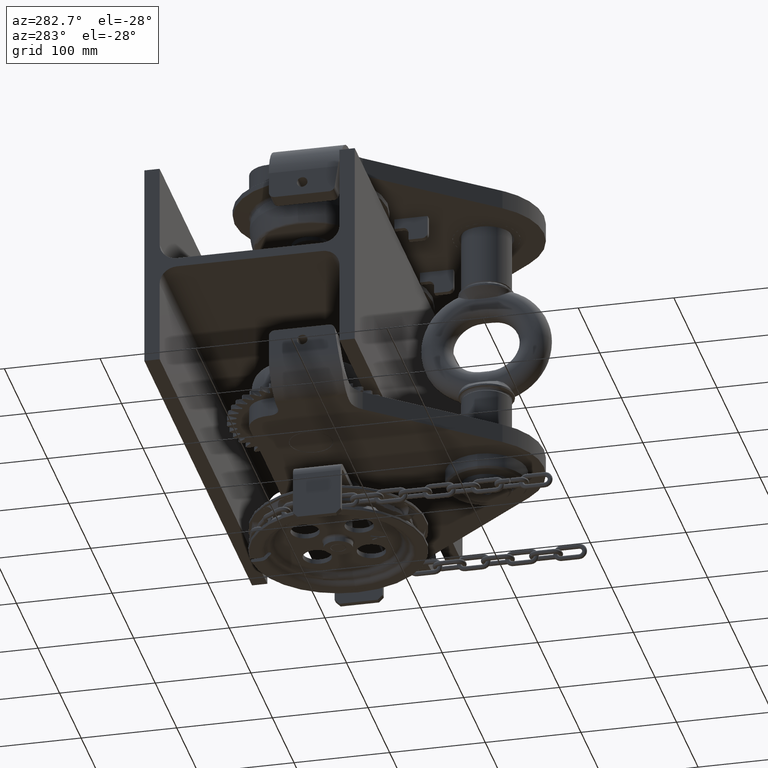
[diagram: clean part render]
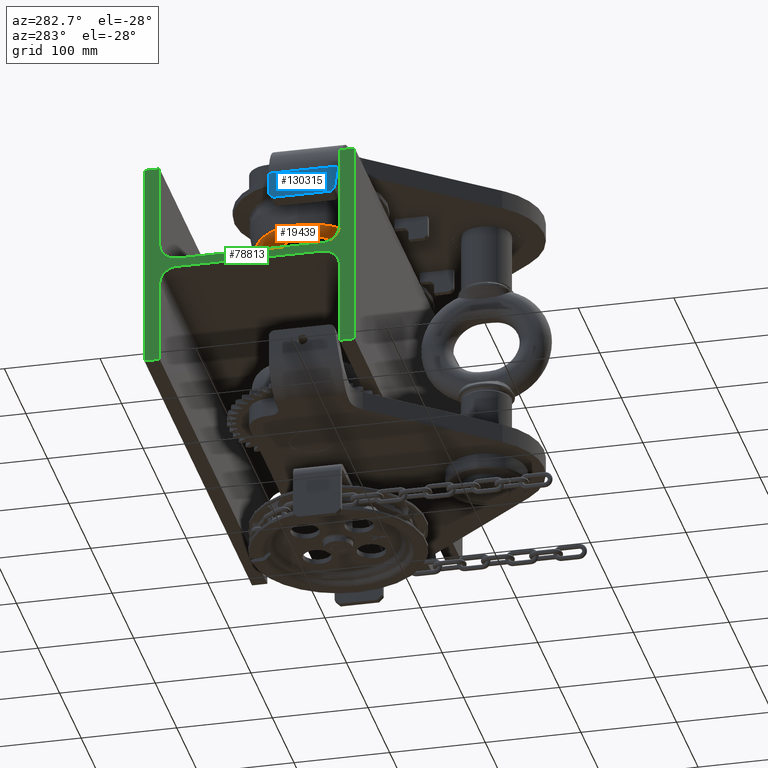
[diagram: same view with three faces highlighted in distinct colors, each labeled with its STEP entity id]
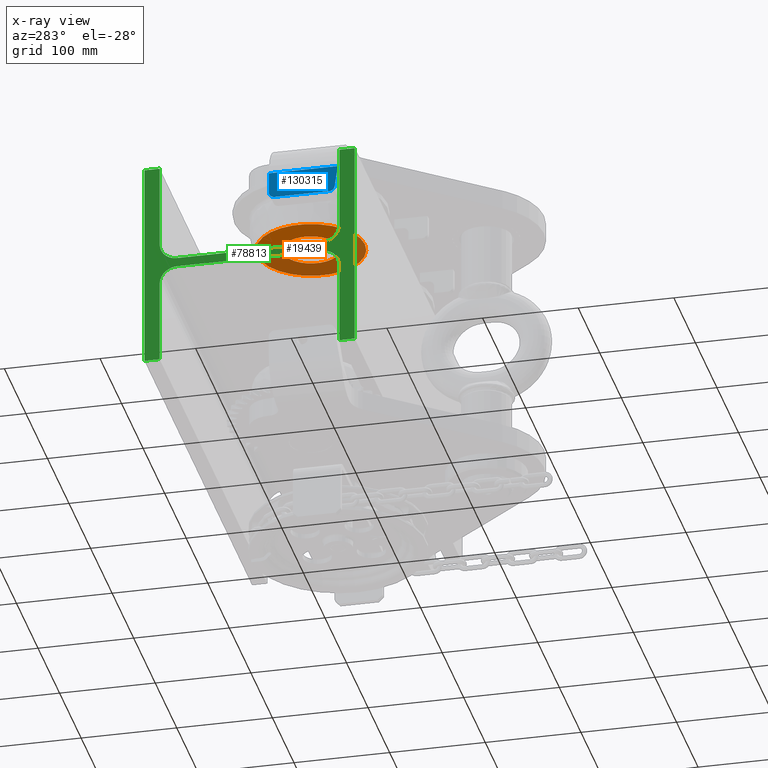
[diagram: x-ray of the same camera — body ghosted, the three highlighted faces saturated]
A machine part, auxiliary view with three faces highlighted in distinct colors.
The next image is the same camera in x-ray (body ghosted, the three faces saturated) — at least one of them is partly hidden behind the body in this view.
Their STEP definitions:

[orange] entity #19439 — the highlighted planar face has unit normal (0, -0, 1).
#1369 = AXIS2_PLACEMENT_3D ( 'NONE', #79712, #19463, #89887 ) ;
#4929 = EDGE_LOOP ( 'NONE', ( #107119, #112929 ) ) ;
#7710 = AXIS2_PLACEMENT_3D ( 'NONE', #65252, #35841, #36697 ) ;
#9279 = VERTEX_POINT ( 'NONE', #46216 ) ;
#12326 = CIRCLE ( 'NONE', #7710, 56.38483838763749400 ) ;
#13641 = DIRECTION ( 'NONE',  ( 4.704334850106594800E-016, 1.000000000000000000, 0.0000000000000000000 ) ) ;
#15165 = VERTEX_POINT ( 'NONE', #88862 ) ;
#19439 = ADVANCED_FACE ( 'NONE', ( #21214, #106113 ), #22588, .F. ) ;
#19463 = DIRECTION ( 'NONE',  ( 1.448770578083864200E-017, -2.739772443918363900E-018, 1.000000000000000000 ) ) ;
#21214 = FACE_BOUND ( 'NONE', #4929, .T. ) ;
#21297 = CIRCLE ( 'NONE', #1369, 29.50000000000000700 ) ;
#22588 = PLANE ( 'NONE',  #111922 ) ;
#22798 = VERTEX_POINT ( 'NONE', #127748 ) ;
#26589 = CARTESIAN_POINT ( 'NONE',  ( -104.5000000000026700, -1.999999999999904500, 76.99999999999970200 ) ) ;
#35831 = DIRECTION ( 'NONE',  ( 2.461262318853643100E-016, 1.000000000000000000, 0.0000000000000000000 ) ) ;
#35841 = DIRECTION ( 'NONE',  ( 1.448770578083864200E-017, -2.739772443918363900E-018, 1.000000000000000000 ) ) ;
#36697 = DIRECTION ( 'NONE',  ( 2.461262318853643100E-016, 1.000000000000000000, 0.0000000000000000000 ) ) ;
#44196 = CARTESIAN_POINT ( 'NONE',  ( -104.5000000000026700, -31.49999999999991100, 76.99999999999967300 ) ) ;
#46216 = CARTESIAN_POINT ( 'NONE',  ( -104.5000000000026600, 24.88483838763758300, 76.99999999999967300 ) ) ;
#62182 = CIRCLE ( 'NONE', #123197, 56.38483838763749400 ) ;
#63671 = CARTESIAN_POINT ( 'NONE',  ( -104.5000000000026700, -31.49999999999991100, 76.99999999999970200 ) ) ;
#64044 = EDGE_CURVE ( 'NONE', #9279, #15165, #62182, .T. ) ;
#64190 = VERTEX_POINT ( 'NONE', #26589 ) ;
#65252 = CARTESIAN_POINT ( 'NONE',  ( -104.5000000000026700, -31.49999999999991100, 76.99999999999967300 ) ) ;
#79712 = CARTESIAN_POINT ( 'NONE',  ( -104.5000000000026700, -31.49999999999991100, 76.99999999999970200 ) ) ;
#81247 = EDGE_CURVE ( 'NONE', #64190, #22798, #21297, .T. ) ;
#81626 = EDGE_LOOP ( 'NONE', ( #108723, #113766 ) ) ;
#81961 = DIRECTION ( 'NONE',  ( 1.448770578083863900E-017, -4.784122660498730500E-019, 1.000000000000000000 ) ) ;
#88862 = CARTESIAN_POINT ( 'NONE',  ( -104.5000000000027000, -87.88483838763740200, 76.99999999999967300 ) ) ;
#89339 = CIRCLE ( 'NONE', #96532, 29.50000000000000700 ) ;
#89887 = DIRECTION ( 'NONE',  ( 4.704334850106594800E-016, 1.000000000000000000, 0.0000000000000000000 ) ) ;
#96099 = DIRECTION ( 'NONE',  ( 1.448770578083864200E-017, -2.739772443918363900E-018, 1.000000000000000000 ) ) ;
#96532 = AXIS2_PLACEMENT_3D ( 'NONE', #63671, #113531, #13641 ) ;
#106113 = FACE_OUTER_BOUND ( 'NONE', #81626, .T. ) ;
#107119 = ORIENTED_EDGE ( 'NONE', *, *, #124368, .T. ) ;
#108723 = ORIENTED_EDGE ( 'NONE', *, *, #64044, .F. ) ;
#111922 = AXIS2_PLACEMENT_3D ( 'NONE', #113230, #81961, #112791 ) ;
#112791 = DIRECTION ( 'NONE',  ( 2.775557561562893300E-016, 1.000000000000000000, 4.784122660498690000E-019 ) ) ;
#112929 = ORIENTED_EDGE ( 'NONE', *, *, #81247, .T. ) ;
#113230 = CARTESIAN_POINT ( 'NONE',  ( -160.8848383876403400, -31.49999999999993600, 76.99999999999967300 ) ) ;
#113531 = DIRECTION ( 'NONE',  ( 1.448770578083864200E-017, -2.739772443918363900E-018, 1.000000000000000000 ) ) ;
#113766 = ORIENTED_EDGE ( 'NONE', *, *, #127037, .F. ) ;
#123197 = AXIS2_PLACEMENT_3D ( 'NONE', #44196, #96099, #35831 ) ;
#124368 = EDGE_CURVE ( 'NONE', #22798, #64190, #89339, .T. ) ;
#127037 = EDGE_CURVE ( 'NONE', #15165, #9279, #12326, .T. ) ;
#127748 = CARTESIAN_POINT ( 'NONE',  ( -104.5000000000026900, -60.99999999999991500, 76.99999999999970200 ) ) ;

[blue] entity #130315 — the highlighted planar face has unit normal (-1, -0, 0).
#786 = ORIENTED_EDGE ( 'NONE', *, *, #38282, .T. ) ;
#1256 = CARTESIAN_POINT ( 'NONE',  ( -225.0000000000015600, -251.4999999999995500, 77.00000000000164800 ) ) ;
#3119 = CARTESIAN_POINT ( 'NONE',  ( -225.0000000000016200, -20.49999999999990100, 83.00000000000166300 ) ) ;
#4646 = EDGE_LOOP ( 'NONE', ( #5692, #121038 ) ) ;
#5170 = AXIS2_PLACEMENT_3D ( 'NONE', #24581, #14518, #75564 ) ;
#5692 = ORIENTED_EDGE ( 'NONE', *, *, #107768, .T. ) ;
#5723 = FACE_OUTER_BOUND ( 'NONE', #89746, .T. ) ;
#6695 = DIRECTION ( 'NONE',  ( 0.0000000000000000000, -1.000000000000000000, 0.0000000000000000000 ) ) ;
#7714 = EDGE_CURVE ( 'NONE', #27940, #105470, #24462, .T. ) ;
#11001 = EDGE_CURVE ( 'NONE', #84545, #104438, #76986, .T. ) ;
#12948 = VERTEX_POINT ( 'NONE', #95020 ) ;
#13016 = CARTESIAN_POINT ( 'NONE',  ( -225.0000000000016200, -49.49999999999983700, 91.00000000000166300 ) ) ;
#13638 = DIRECTION ( 'NONE',  ( -1.000000000000000000, 1.665334536937732800E-016, 7.198470905858312400E-017 ) ) ;
#14518 = DIRECTION ( 'NONE',  ( 1.000000000000000000, -1.665334536937732800E-016, -7.198470905858312400E-017 ) ) ;
#19918 = ORIENTED_EDGE ( 'NONE', *, *, #7714, .F. ) ;
#22879 = CARTESIAN_POINT ( 'NONE',  ( -225.0000000000015600, -251.4999999999995500, 105.0000000000016600 ) ) ;
#23644 = DIRECTION ( 'NONE',  ( -1.387778780781459200E-017, 1.000000000000000000, 6.193977041085462900E-017 ) ) ;
#24462 = LINE ( 'NONE', #62311, #81159 ) ;
#24581 = CARTESIAN_POINT ( 'NONE',  ( -225.0000000000016200, -49.49999999999983700, 91.00000000000166300 ) ) ;
#27940 = VERTEX_POINT ( 'NONE', #64139 ) ;
#30128 = VERTEX_POINT ( 'NONE', #87385 ) ;
#30800 = FACE_BOUND ( 'NONE', #4646, .T. ) ;
#32408 = AXIS2_PLACEMENT_3D ( 'NONE', #13016, #92631, #42450 ) ;
#32957 = DIRECTION ( 'NONE',  ( -1.000000000000000000, -1.387778780781459500E-017, 7.198470905858312400E-017 ) ) ;
#33096 = CIRCLE ( 'NONE', #73317, 6.000000000000005300 ) ;
#35736 = LINE ( 'NONE', #82165, #123909 ) ;
#37062 = CARTESIAN_POINT ( 'NONE',  ( -225.0000000000016200, -77.53831950738792500, 77.00000000000166300 ) ) ;
#38282 = EDGE_CURVE ( 'NONE', #84545, #30128, #33096, .T. ) ;
#38686 = EDGE_CURVE ( 'NONE', #27940, #104438, #113192, .T. ) ;
#42450 = DIRECTION ( 'NONE',  ( 0.0000000000000000000, 1.000000000000000000, 0.0000000000000000000 ) ) ;
#43037 = DIRECTION ( 'NONE',  ( 1.387778780781459200E-017, -1.000000000000000000, -6.193977041085462900E-017 ) ) ;
#43362 = VERTEX_POINT ( 'NONE', #67014 ) ;
#49940 = EDGE_CURVE ( 'NONE', #12948, #54660, #96341, .T. ) ;
#52725 = CARTESIAN_POINT ( 'NONE',  ( -225.0000000000015600, -251.4999999999995500, 105.0000000000016600 ) ) ;
#54660 = VERTEX_POINT ( 'NONE', #96059 ) ;
#57633 = ORIENTED_EDGE ( 'NONE', *, *, #38686, .T. ) ;
#62311 = CARTESIAN_POINT ( 'NONE',  ( -225.0000000000016200, -14.49999999999986700, 77.00000000000166300 ) ) ;
#64139 = CARTESIAN_POINT ( 'NONE',  ( -225.0000000000016200, -14.49999999999986700, 83.00000000000166300 ) ) ;
#67014 = CARTESIAN_POINT ( 'NONE',  ( -225.0000000000016200, -86.68918330595217000, 105.0000000000016800 ) ) ;
#73317 = AXIS2_PLACEMENT_3D ( 'NONE', #95986, #76605, #6695 ) ;
#75051 = AXIS2_PLACEMENT_3D ( 'NONE', #3119, #13638, #93245 ) ;
#75564 = DIRECTION ( 'NONE',  ( 0.0000000000000000000, 1.000000000000000000, 0.0000000000000000000 ) ) ;
#76605 = DIRECTION ( 'NONE',  ( -1.000000000000000000, 1.665334536937732800E-016, 7.198470905858312400E-017 ) ) ;
#76633 = CARTESIAN_POINT ( 'NONE',  ( -225.0000000000016200, -20.49999999999991500, 77.00000000000166300 ) ) ;
#76986 = LINE ( 'NONE', #1256, #100643 ) ;
#81159 = VECTOR ( 'NONE', #82184, 1000.000000000000000 ) ;
#82165 = CARTESIAN_POINT ( 'NONE',  ( -225.0000000000016200, -89.49999999999977300, 125.0000000000016600 ) ) ;
#82184 = DIRECTION ( 'NONE',  ( 7.198470905858334600E-017, -6.193977041085496200E-017, 1.000000000000000000 ) ) ;
#83132 = PLANE ( 'NONE',  #125307 ) ;
#84545 = VERTEX_POINT ( 'NONE', #37062 ) ;
#87385 = CARTESIAN_POINT ( 'NONE',  ( -225.0000000000016200, -83.47992791983733700, 82.16496139424133100 ) ) ;
#89746 = EDGE_LOOP ( 'NONE', ( #120516, #786, #127262, #94546, #19918, #57633 ) ) ;
#92631 = DIRECTION ( 'NONE',  ( 1.000000000000000000, -1.665334536937732800E-016, -7.198470905858312400E-017 ) ) ;
#93245 = DIRECTION ( 'NONE',  ( 0.0000000000000000000, -1.000000000000000000, 0.0000000000000000000 ) ) ;
#93873 = EDGE_CURVE ( 'NONE', #30128, #43362, #35736, .T. ) ;
#94546 = ORIENTED_EDGE ( 'NONE', *, *, #130207, .T. ) ;
#95020 = CARTESIAN_POINT ( 'NONE',  ( -225.0000000000016200, -54.99999999999984400, 91.00000000000166300 ) ) ;
#95888 = LINE ( 'NONE', #52725, #96968 ) ;
#95986 = CARTESIAN_POINT ( 'NONE',  ( -225.0000000000016200, -77.53831950738791100, 83.00000000000166300 ) ) ;
#96059 = CARTESIAN_POINT ( 'NONE',  ( -225.0000000000016200, -43.99999999999982900, 91.00000000000166300 ) ) ;
#96341 = CIRCLE ( 'NONE', #5170, 5.500000000000005300 ) ;
#96968 = VECTOR ( 'NONE', #123207, 1000.000000000000000 ) ;
#100643 = VECTOR ( 'NONE', #23644, 1000.000000000000000 ) ;
#100903 = CIRCLE ( 'NONE', #32408, 5.500000000000005300 ) ;
#104438 = VERTEX_POINT ( 'NONE', #76633 ) ;
#105470 = VERTEX_POINT ( 'NONE', #109685 ) ;
#107768 = EDGE_CURVE ( 'NONE', #54660, #12948, #100903, .T. ) ;
#109685 = CARTESIAN_POINT ( 'NONE',  ( -225.0000000000016200, -14.49999999999986700, 105.0000000000016800 ) ) ;
#113192 = CIRCLE ( 'NONE', #75051, 5.999999999999998200 ) ;
#120516 = ORIENTED_EDGE ( 'NONE', *, *, #11001, .F. ) ;
#121038 = ORIENTED_EDGE ( 'NONE', *, *, #49940, .T. ) ;
#122690 = DIRECTION ( 'NONE',  ( 7.321557358204642800E-017, -0.1391731009600587500, 0.9902680687415712500 ) ) ;
#123207 = DIRECTION ( 'NONE',  ( -1.387778780781459200E-017, 1.000000000000000000, 6.193977041085462900E-017 ) ) ;
#123909 = VECTOR ( 'NONE', #122690, 1000.000000000000100 ) ;
#125307 = AXIS2_PLACEMENT_3D ( 'NONE', #22879, #32957, #43037 ) ;
#127262 = ORIENTED_EDGE ( 'NONE', *, *, #93873, .T. ) ;
#130207 = EDGE_CURVE ( 'NONE', #43362, #105470, #95888, .T. ) ;
#130315 = ADVANCED_FACE ( 'NONE', ( #30800, #5723 ), #83132, .T. ) ;

[green] entity #78813 — the highlighted planar face has unit normal (-1, -0, 0).
#840 = ORIENTED_EDGE ( 'NONE', *, *, #12330, .F. ) ;
#2723 = CARTESIAN_POINT ( 'NONE',  ( -250.0000000000006500, 94.00000000000031300, -109.9999999999998900 ) ) ;
#3785 = EDGE_CURVE ( 'NONE', #90476, #58443, #98786, .T. ) ;
#3971 = CARTESIAN_POINT ( 'NONE',  ( -250.0000000000006500, 94.00000000000025600, 22.75000000000008200 ) ) ;
#6027 = DIRECTION ( 'NONE',  ( -7.690921138283205700E-049, 1.000000000000000000, -8.244299725649902800E-016 ) ) ;
#7266 = EDGE_CURVE ( 'NONE', #102897, #121765, #68733, .T. ) ;
#7576 = EDGE_CURVE ( 'NONE', #96896, #90476, #82792, .T. ) ;
#10397 = DIRECTION ( 'NONE',  ( 9.629649721936186100E-034, -1.622250703616511100E-016, 1.000000000000000000 ) ) ;
#10471 = EDGE_CURVE ( 'NONE', #18727, #11348, #19026, .T. ) ;
#10580 = LINE ( 'NONE', #3971, #63961 ) ;
#11348 = VERTEX_POINT ( 'NONE', #122087 ) ;
#12330 = EDGE_CURVE ( 'NONE', #121765, #23322, #68240, .T. ) ;
#12665 = VERTEX_POINT ( 'NONE', #107875 ) ;
#13888 = DIRECTION ( 'NONE',  ( 6.614685807549049200E-050, 1.000000000000000000, 4.293176542341293600E-017 ) ) ;
#14862 = VECTOR ( 'NONE', #10397, 1000.000000000000000 ) ;
#16851 = DIRECTION ( 'NONE',  ( 0.0000000000000000000, 0.0000000000000000000, -1.000000000000000000 ) ) ;
#18158 = ORIENTED_EDGE ( 'NONE', *, *, #65610, .T. ) ;
#18727 = VERTEX_POINT ( 'NONE', #58052 ) ;
#19026 = LINE ( 'NONE', #99877, #127592 ) ;
#20557 = CARTESIAN_POINT ( 'NONE',  ( -250.0000000000006500, 76.00000000000009900, 22.75000000000007500 ) ) ;
#21071 = CARTESIAN_POINT ( 'NONE',  ( -250.0000000000006500, 110.0000000000003100, 110.0000000000001000 ) ) ;
#23322 = VERTEX_POINT ( 'NONE', #37357 ) ;
#24954 = EDGE_CURVE ( 'NONE', #34374, #45451, #74839, .T. ) ;
#25351 = DIRECTION ( 'NONE',  ( 9.013858299792980600E-049, 1.000000000000000000, 9.102935034118123800E-016 ) ) ;
#25895 = DIRECTION ( 'NONE',  ( 9.629649721936186100E-034, -4.293176542341792800E-017, 1.000000000000000000 ) ) ;
#26402 = CARTESIAN_POINT ( 'NONE',  ( -250.0000000000006500, 76.00000000000009900, 4.750000000000046200 ) ) ;
#26468 = CARTESIAN_POINT ( 'NONE',  ( -250.0000000000006500, -93.99999999999985800, -110.0000000000000100 ) ) ;
#26476 = CARTESIAN_POINT ( 'NONE',  ( -250.0000000000006500, -75.99999999999963100, 22.75000000000006400 ) ) ;
#26599 = DIRECTION ( 'NONE',  ( -1.000000000000000000, -1.653671451887099000E-050, -1.925929944387234500E-033 ) ) ;
#27020 = CARTESIAN_POINT ( 'NONE',  ( -250.0000000000006500, -75.99999999999984400, -22.74999999999997200 ) ) ;
#29232 = ORIENTED_EDGE ( 'NONE', *, *, #7266, .F. ) ;
#29818 = VECTOR ( 'NONE', #25351, 1000.000000000000000 ) ;
#31565 = CIRCLE ( 'NONE', #62546, 18.00000000000001400 ) ;
#33354 = EDGE_CURVE ( 'NONE', #52200, #98062, #52113, .T. ) ;
#34374 = VERTEX_POINT ( 'NONE', #63168 ) ;
#35112 = CARTESIAN_POINT ( 'NONE',  ( -250.0000000000006500, 94.00000000000025600, -22.74999999999990800 ) ) ;
#37357 = CARTESIAN_POINT ( 'NONE',  ( -250.0000000000006500, -93.99999999999988600, -22.74999999999997500 ) ) ;
#37373 = VECTOR ( 'NONE', #25895, 1000.000000000000000 ) ;
#37576 = CARTESIAN_POINT ( 'NONE',  ( -250.0000000000006500, 94.00000000000025600, 22.75000000000008200 ) ) ;
#38317 = EDGE_CURVE ( 'NONE', #34374, #98062, #55036, .T. ) ;
#38936 = EDGE_CURVE ( 'NONE', #12665, #45575, #108201, .T. ) ;
#43330 = EDGE_CURVE ( 'NONE', #127339, #18727, #127430, .T. ) ;
#44903 = LINE ( 'NONE', #110247, #85887 ) ;
#45027 = CARTESIAN_POINT ( 'NONE',  ( -250.0000000000006500, 94.00000000000022700, 110.0000000000001000 ) ) ;
#45451 = VERTEX_POINT ( 'NONE', #57110 ) ;
#45575 = VERTEX_POINT ( 'NONE', #21071 ) ;
#45965 = CARTESIAN_POINT ( 'NONE',  ( -250.0000000000006500, -109.9999999999998700, -110.0000000000000000 ) ) ;
#46092 = EDGE_CURVE ( 'NONE', #45451, #12665, #97330, .T. ) ;
#46220 = DIRECTION ( 'NONE',  ( 1.000000000000000000, 1.653671451887099000E-050, 1.925929944387234500E-033 ) ) ;
#47881 = DIRECTION ( 'NONE',  ( 6.614685807549049200E-050, 1.000000000000000000, 4.293176542341293600E-017 ) ) ;
#48298 = DIRECTION ( 'NONE',  ( 6.614685807549049200E-050, 1.000000000000000000, 4.293176542341293600E-017 ) ) ;
#48784 = DIRECTION ( 'NONE',  ( -9.629649721936186100E-034, 2.667384474064550200E-015, -1.000000000000000000 ) ) ;
#49901 = DIRECTION ( 'NONE',  ( -9.629649721936186100E-034, 4.554710308673319500E-016, -1.000000000000000000 ) ) ;
#50406 = CARTESIAN_POINT ( 'NONE',  ( -250.0000000000006500, -75.99999999999984400, -4.749999999999960000 ) ) ;
#52113 = LINE ( 'NONE', #98105, #59911 ) ;
#52200 = VERTEX_POINT ( 'NONE', #50406 ) ;
#52638 = ORIENTED_EDGE ( 'NONE', *, *, #24954, .F. ) ;
#55036 = CIRCLE ( 'NONE', #86879, 17.99999999999997500 ) ;
#57110 = CARTESIAN_POINT ( 'NONE',  ( -250.0000000000006500, 94.00000000000031300, -109.9999999999998900 ) ) ;
#57901 = CARTESIAN_POINT ( 'NONE',  ( -250.0000000000006500, 110.0000000000003100, -109.9999999999999100 ) ) ;
#58052 = CARTESIAN_POINT ( 'NONE',  ( -250.0000000000006500, -93.99999999999991500, 110.0000000000000100 ) ) ;
#58062 = AXIS2_PLACEMENT_3D ( 'NONE', #88339, #68420, #98409 ) ;
#58191 = ORIENTED_EDGE ( 'NONE', *, *, #113335, .F. ) ;
#58443 = VERTEX_POINT ( 'NONE', #37576 ) ;
#58480 = ORIENTED_EDGE ( 'NONE', *, *, #38936, .F. ) ;
#59228 = EDGE_LOOP ( 'NONE', ( #840, #29232, #116743, #98976, #77802, #18158, #108771, #69411, #91639, #112800, #58480, #70016, #52638, #90072, #102003, #58191 ) ) ;
#59911 = VECTOR ( 'NONE', #47881, 1000.000000000000000 ) ;
#60511 = DIRECTION ( 'NONE',  ( 0.0000000000000000000, 0.0000000000000000000, -1.000000000000000000 ) ) ;
#62410 = VECTOR ( 'NONE', #6027, 1000.000000000000000 ) ;
#62546 = AXIS2_PLACEMENT_3D ( 'NONE', #26476, #46220, #85496 ) ;
#63168 = CARTESIAN_POINT ( 'NONE',  ( -250.0000000000006500, 94.00000000000025600, -22.74999999999990800 ) ) ;
#63961 = VECTOR ( 'NONE', #74701, 1000.000000000000000 ) ;
#64181 = VECTOR ( 'NONE', #81443, 1000.000000000000000 ) ;
#65610 = EDGE_CURVE ( 'NONE', #11348, #96896, #31565, .T. ) ;
#67701 = CARTESIAN_POINT ( 'NONE',  ( -250.0000000000006500, -75.99999999999963100, 4.750000000000058600 ) ) ;
#68240 = LINE ( 'NONE', #81594, #14862 ) ;
#68420 = DIRECTION ( 'NONE',  ( -1.000000000000000000, -1.405620734104246900E-049, 9.629649721936186100E-034 ) ) ;
#68486 = VECTOR ( 'NONE', #106781, 1000.000000000000000 ) ;
#68733 = LINE ( 'NONE', #45965, #62410 ) ;
#69411 = ORIENTED_EDGE ( 'NONE', *, *, #3785, .T. ) ;
#70016 = ORIENTED_EDGE ( 'NONE', *, *, #46092, .F. ) ;
#72662 = VECTOR ( 'NONE', #13888, 1000.000000000000000 ) ;
#74038 = EDGE_CURVE ( 'NONE', #82089, #45575, #79015, .T. ) ;
#74701 = DIRECTION ( 'NONE',  ( 9.629649721936186100E-034, -3.610472452587067100E-016, 1.000000000000000000 ) ) ;
#74715 = CARTESIAN_POINT ( 'NONE',  ( -250.0000000000006500, -109.9999999999998700, -110.0000000000000000 ) ) ;
#74839 = LINE ( 'NONE', #35112, #68486 ) ;
#76326 = CARTESIAN_POINT ( 'NONE',  ( -250.0000000000006500, -109.9999999999999700, 110.0000000000000000 ) ) ;
#77802 = ORIENTED_EDGE ( 'NONE', *, *, #10471, .T. ) ;
#78165 = PLANE ( 'NONE',  #58062 ) ;
#78813 = ADVANCED_FACE ( 'NONE', ( #80539 ), #78165, .T. ) ;
#79015 = LINE ( 'NONE', #45027, #72662 ) ;
#80539 = FACE_OUTER_BOUND ( 'NONE', #59228, .T. ) ;
#81443 = DIRECTION ( 'NONE',  ( -1.604331085732129100E-048, 1.000000000000000000, -1.691791710553390600E-015 ) ) ;
#81594 = CARTESIAN_POINT ( 'NONE',  ( -250.0000000000006500, -93.99999999999985800, -110.0000000000000100 ) ) ;
#82089 = VERTEX_POINT ( 'NONE', #126106 ) ;
#82792 = LINE ( 'NONE', #119242, #84443 ) ;
#84443 = VECTOR ( 'NONE', #48298, 1000.000000000000000 ) ;
#85496 = DIRECTION ( 'NONE',  ( 0.0000000000000000000, 0.0000000000000000000, -1.000000000000000000 ) ) ;
#85887 = VECTOR ( 'NONE', #49901, 1000.000000000000000 ) ;
#86366 = CARTESIAN_POINT ( 'NONE',  ( -250.0000000000006500, 76.00000000000015600, -22.74999999999992200 ) ) ;
#86879 = AXIS2_PLACEMENT_3D ( 'NONE', #86366, #117165, #16851 ) ;
#88339 = CARTESIAN_POINT ( 'NONE',  ( -250.0000000000006500, -75.99999999999984400, -22.74999999999997200 ) ) ;
#90072 = ORIENTED_EDGE ( 'NONE', *, *, #38317, .T. ) ;
#90476 = VERTEX_POINT ( 'NONE', #26402 ) ;
#91389 = DIRECTION ( 'NONE',  ( 1.000000000000000000, 1.653671451887099000E-050, 1.925929944387234500E-033 ) ) ;
#91639 = ORIENTED_EDGE ( 'NONE', *, *, #124346, .T. ) ;
#96896 = VERTEX_POINT ( 'NONE', #67701 ) ;
#96979 = DIRECTION ( 'NONE',  ( 0.0000000000000000000, 0.0000000000000000000, 1.000000000000000000 ) ) ;
#97224 = CARTESIAN_POINT ( 'NONE',  ( -250.0000000000006500, 76.00000000000015600, -4.749999999999941400 ) ) ;
#97330 = LINE ( 'NONE', #2723, #64181 ) ;
#98062 = VERTEX_POINT ( 'NONE', #97224 ) ;
#98105 = CARTESIAN_POINT ( 'NONE',  ( -250.0000000000006500, -75.99999999999984400, -4.749999999999960000 ) ) ;
#98409 = DIRECTION ( 'NONE',  ( 9.629649721936186100E-034, -4.293176542341792800E-017, 1.000000000000000000 ) ) ;
#98786 = CIRCLE ( 'NONE', #121534, 18.00000000000002500 ) ;
#98976 = ORIENTED_EDGE ( 'NONE', *, *, #43330, .T. ) ;
#99877 = CARTESIAN_POINT ( 'NONE',  ( -250.0000000000006500, -93.99999999999991500, 110.0000000000000100 ) ) ;
#102003 = ORIENTED_EDGE ( 'NONE', *, *, #33354, .F. ) ;
#102897 = VERTEX_POINT ( 'NONE', #74715 ) ;
#104013 = EDGE_CURVE ( 'NONE', #127339, #102897, #44903, .T. ) ;
#106781 = DIRECTION ( 'NONE',  ( -9.629649721936186100E-034, 6.791627250939953200E-016, -1.000000000000000000 ) ) ;
#107875 = CARTESIAN_POINT ( 'NONE',  ( -250.0000000000006500, 110.0000000000003100, -109.9999999999999100 ) ) ;
#108201 = LINE ( 'NONE', #57901, #37373 ) ;
#108771 = ORIENTED_EDGE ( 'NONE', *, *, #7576, .T. ) ;
#109134 = CIRCLE ( 'NONE', #126047, 18.00000000000000000 ) ;
#110247 = CARTESIAN_POINT ( 'NONE',  ( -250.0000000000006500, -109.9999999999999700, 110.0000000000000000 ) ) ;
#110712 = CARTESIAN_POINT ( 'NONE',  ( -250.0000000000006500, -109.9999999999999700, 110.0000000000000000 ) ) ;
#112800 = ORIENTED_EDGE ( 'NONE', *, *, #74038, .T. ) ;
#113335 = EDGE_CURVE ( 'NONE', #23322, #52200, #109134, .T. ) ;
#116743 = ORIENTED_EDGE ( 'NONE', *, *, #104013, .F. ) ;
#117165 = DIRECTION ( 'NONE',  ( 1.000000000000000000, 1.653671451887099000E-050, 1.925929944387234500E-033 ) ) ;
#119242 = CARTESIAN_POINT ( 'NONE',  ( -250.0000000000006500, -75.99999999999963100, 4.750000000000041700 ) ) ;
#121534 = AXIS2_PLACEMENT_3D ( 'NONE', #20557, #91389, #60511 ) ;
#121765 = VERTEX_POINT ( 'NONE', #26468 ) ;
#122087 = CARTESIAN_POINT ( 'NONE',  ( -250.0000000000006500, -93.99999999999968700, 22.75000000000000000 ) ) ;
#124346 = EDGE_CURVE ( 'NONE', #58443, #82089, #10580, .T. ) ;
#126047 = AXIS2_PLACEMENT_3D ( 'NONE', #27020, #26599, #96979 ) ;
#126106 = CARTESIAN_POINT ( 'NONE',  ( -250.0000000000006500, 94.00000000000022700, 110.0000000000001000 ) ) ;
#127339 = VERTEX_POINT ( 'NONE', #110712 ) ;
#127430 = LINE ( 'NONE', #76326, #29818 ) ;
#127592 = VECTOR ( 'NONE', #48784, 1000.000000000000000 ) ;